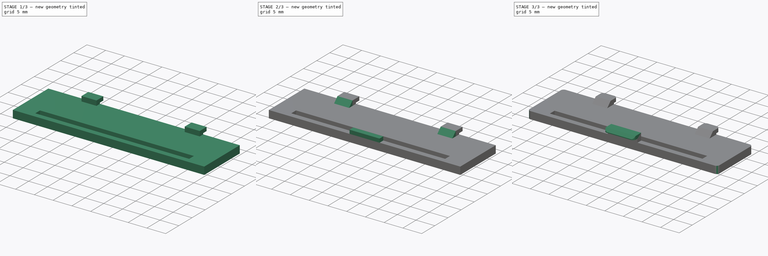
[diagram: build sequence overview — one tinted view per stage of 3, left to right]
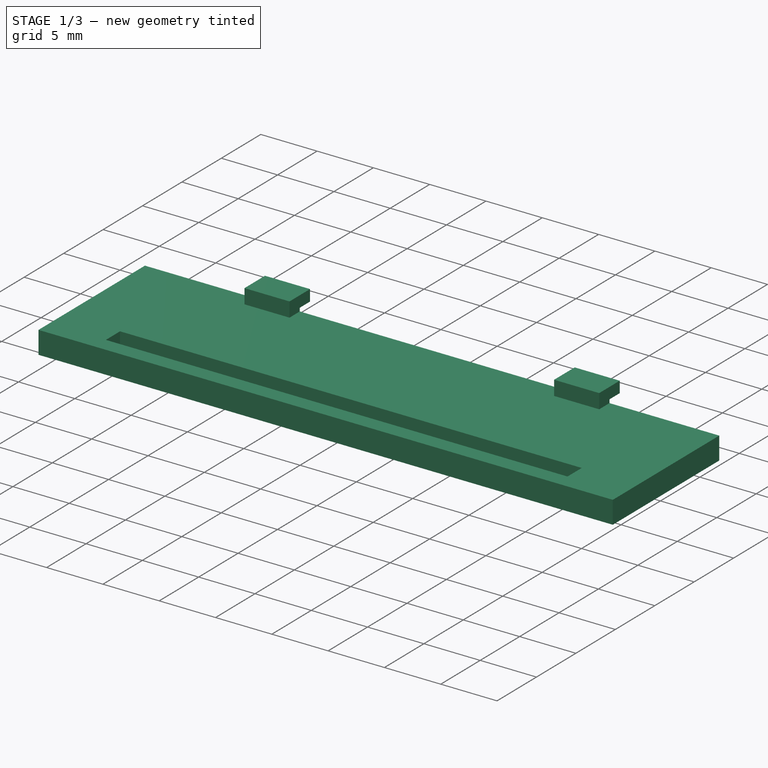
[diagram: stage 1 of 3 — iso view after this stage's code; geometry added in this stage tinted green]
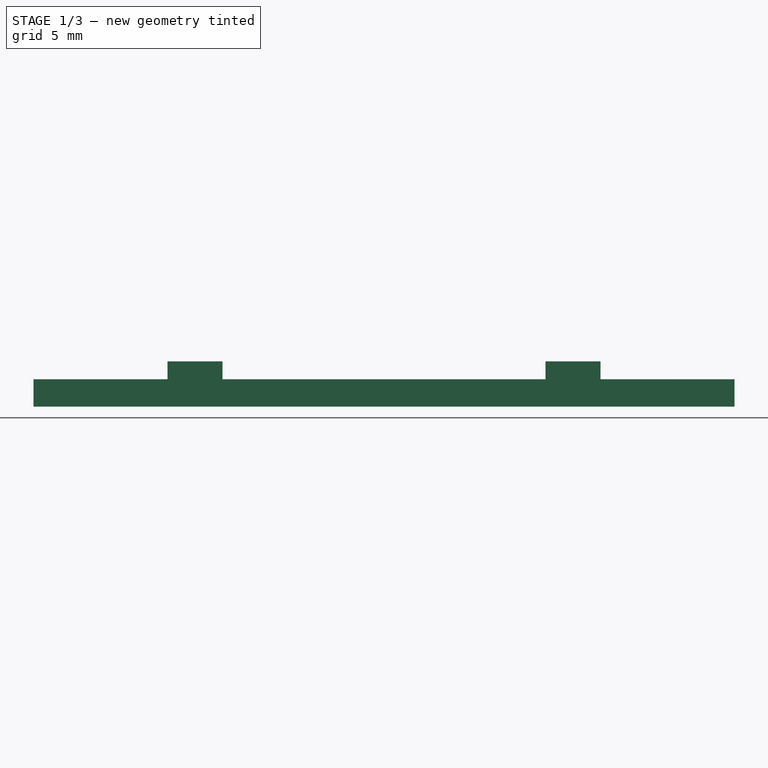
[diagram: stage 1 of 3 — front view after this stage's code; geometry added in this stage tinted green]
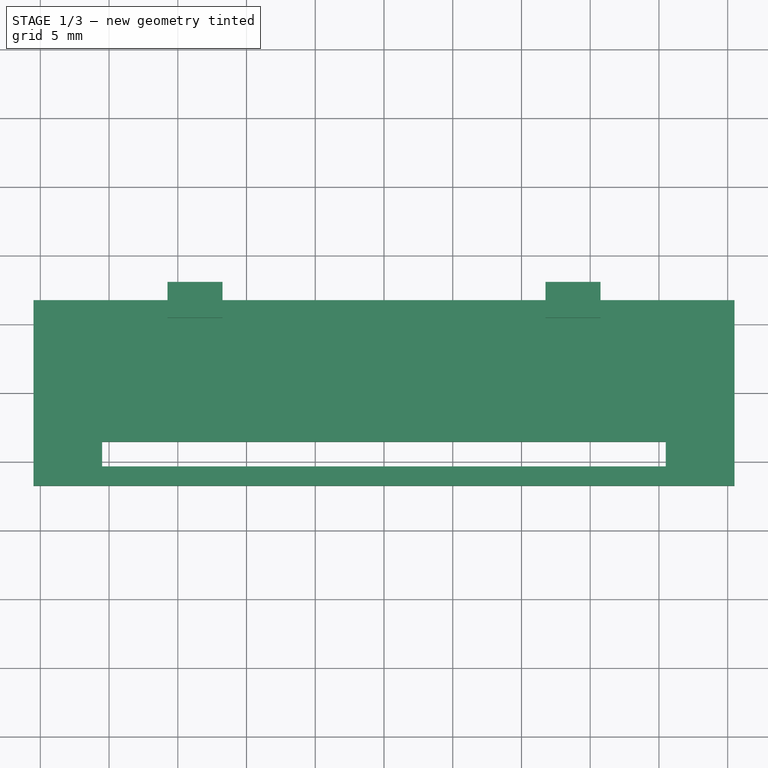
[diagram: stage 1 of 3 — top view after this stage's code; geometry added in this stage tinted green]
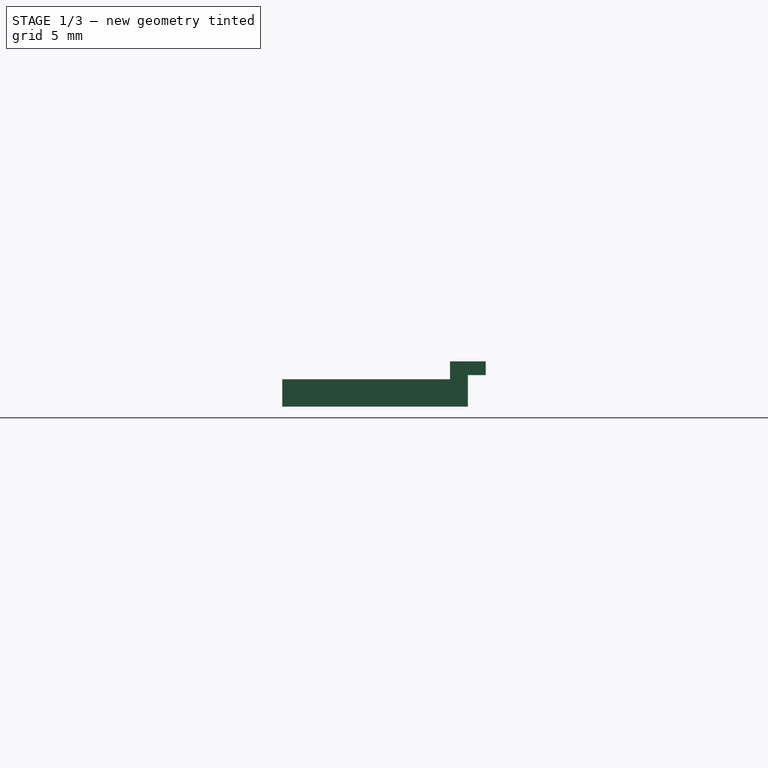
[diagram: stage 1 of 3 — right view after this stage's code; geometry added in this stage tinted green]
FCSTD DOCUMENT  (FreeCAD 0.18.4R)
Label: BatteryCover
License: All rights reserved
LicenseURL: http://en.wikipedia.org/wiki/All_rights_reserved
objects: Sketcher::SketchObject×6, PartDesign::Pad×5, PartDesign::Chamfer×2, PartDesign::Fillet×1, PartDesign::Body×1, App::Part×1
note: 20 computed .brp shape members not serialized (recipe doc carries the construction recipe); baked Part::Feature solids carry a one-line shape summary decoded from their .brp

FEATURE [Sketcher::SketchObject] Sketch  label="Template"
  MapMode = 5
  Support = -> [XY_Plane001]
  expr: Constraints[53] = Constraints.HatchSize / 2 + 0.4mm
  sketch-geometry (21):
    g0: LineSegment StartX=-25.5 StartY=6.75 StartZ=0 EndX=25.5 EndY=6.75 EndZ=0
    g1: LineSegment StartX=25.5 StartY=6.75 StartZ=0 EndX=25.5 EndY=-6.75 EndZ=0
    g2: LineSegment StartX=25.5 StartY=-6.75 StartZ=0 EndX=-25.5 EndY=-6.75 EndZ=0
    g3: LineSegment StartX=-25.5 StartY=-6.75 StartZ=0 EndX=-25.5 EndY=6.75 EndZ=0
    g4: LineSegment [constr] StartX=1e-16 StartY=6.75 StartZ=0 EndX=1e-16 EndY=-6.75 EndZ=0
    g5: LineSegment StartX=-15.75 StartY=8.05 StartZ=0 EndX=-11.75 EndY=8.05 EndZ=0
    g6: LineSegment StartX=-11.75 StartY=8.05 StartZ=0 EndX=-11.75 EndY=5.45 EndZ=0
    g7: LineSegment StartX=-11.75 StartY=5.45 StartZ=0 EndX=-15.75 EndY=5.45 EndZ=0
    g8: LineSegment StartX=-15.75 StartY=5.45 StartZ=0 EndX=-15.75 EndY=8.05 EndZ=0
    g9: LineSegment StartX=11.75 StartY=8.05 StartZ=0 EndX=15.75 EndY=8.05 EndZ=0
    g10: LineSegment StartX=15.75 StartY=8.05 StartZ=0 EndX=15.75 EndY=5.45 EndZ=0
    g11: LineSegment StartX=15.75 StartY=5.45 StartZ=0 EndX=11.75 EndY=5.45 EndZ=0
    g12: LineSegment StartX=11.75 StartY=5.45 StartZ=0 EndX=11.75 EndY=8.05 EndZ=0
    g13: LineSegment StartX=-4 StartY=-5.35 StartZ=0 EndX=4 EndY=-5.35 EndZ=0
    g14: LineSegment StartX=4 StartY=-5.35 StartZ=0 EndX=4 EndY=-8.15 EndZ=0
    g15: LineSegment StartX=4 StartY=-8.15 StartZ=0 EndX=-4 EndY=-8.15 EndZ=0
    g16: LineSegment StartX=-4 StartY=-8.15 StartZ=0 EndX=-4 EndY=-5.35 EndZ=0
    g17: LineSegment StartX=-20.5 StartY=-3.55 StartZ=0 EndX=20.5 EndY=-3.55 EndZ=0
    g18: LineSegment StartX=20.5 StartY=-3.55 StartZ=0 EndX=20.5 EndY=-5.35 EndZ=0
    g19: LineSegment StartX=20.5 StartY=-5.35 StartZ=0 EndX=-20.5 EndY=-5.35 EndZ=0
    g20: LineSegment StartX=-20.5 StartY=-5.35 StartZ=0 EndX=-20.5 EndY=-3.55 EndZ=0
  constraints (57):
    c: Coincident(g0,g1)
    c: Coincident(g1,g2)
    c: Coincident(g2,g3)
    c: Coincident(g3,g0)
    c: Horizontal(g0)
    c: Horizontal(g2)
    c: Vertical(g1)
    c: Vertical(g3)
    c: DistanceY(g3,g3) = 13.5
    c: DistanceX(g0,g0) = 51
    c: Symmetric(g2,g0,g-1)  '__ANCHOR__'
    c: PointOnObject(g4,g0)
    c: PointOnObject(g4,g2)
    c: Symmetric(g0,g0,g4)
    c: Coincident(g5,g6)
    c: Coincident(g6,g7)
    c: Coincident(g7,g8)
    c: Coincident(g8,g5)
    c: Horizontal(g5)
    c: Horizontal(g7)
    c: Vertical(g6)
    c: Coincident(g9,g10)
    c: Coincident(g10,g11)
    c: Coincident(g11,g12)
    c: Coincident(g12,g9)
    c: Horizontal(g9)
    c: Horizontal(g11)
    c: Vertical(g10)
    c: Vertical(g12)
    c: Equal(g5,g9)
    c: Equal(g6,g12)
    c: Symmetric(g6,g11,g4)
    c: Symmetric(g5,g7,g0)
    c: DistanceY(g8,g8) = 2.6
    c: DistanceX(g5,g9) = 23.5
    c: DistanceX(g5,g5) = 4
    c: Coincident(g13,g14)
    c: Coincident(g14,g15)
    c: Coincident(g15,g16)
    c: Coincident(g16,g13)
    c: Horizontal(g15)
    c: Vertical(g14)
    c: Symmetric(g13,g15,g2)
    c: Symmetric(g13,g13,g4)
    c: DistanceX(g15,g15) = 8
    c: Coincident(g17,g18)
    c: Coincident(g18,g19)
    c: Coincident(g19,g20)
    c: Coincident(g20,g17)
    c: Horizontal(g17)
    c: Vertical(g18)
    c: Vertical(g20)
    c: Symmetric(g19,g18,g4)
    c: DistanceY(g20,g20) = 1.8
    c: DistanceX(g2,g19) = 5
    c: PointOnObject(g13,g19)
    c: DistanceY(g16,g16) = 2.8  'HatchSize'
FEATURE [Sketcher::SketchObject] Sketch001
  ExternalGeometry = -> [Sketch]
  MapMode = 5
  Support = -> [XY_Plane001]
  sketch-geometry (8):
    g0: LineSegment StartX=-25.5 StartY=6.75 StartZ=0 EndX=25.5 EndY=6.75 EndZ=0
    g1: LineSegment StartX=25.5 StartY=6.75 StartZ=0 EndX=25.5 EndY=-6.75 EndZ=0
    g2: LineSegment StartX=25.5 StartY=-6.75 StartZ=0 EndX=-25.5 EndY=-6.75 EndZ=0
    g3: LineSegment StartX=-25.5 StartY=-6.75 StartZ=0 EndX=-25.5 EndY=6.75 EndZ=0
    g4: LineSegment StartX=-20.5 StartY=-3.55 StartZ=0 EndX=-20.5 EndY=-5.35 EndZ=0
    g5: LineSegment StartX=-20.5 StartY=-5.35 StartZ=0 EndX=20.5 EndY=-5.35 EndZ=0
    g6: LineSegment StartX=20.5 StartY=-5.35 StartZ=0 EndX=20.5 EndY=-3.55 EndZ=0
    g7: LineSegment StartX=20.5 StartY=-3.55 StartZ=0 EndX=-20.5 EndY=-3.55 EndZ=0
  constraints (16):
    c: Coincident(g-3,g0)
    c: Coincident(g0,g-4)
    c: Coincident(g0,g1)
    c: Coincident(g1,g-4)
    c: Coincident(g1,g2)
    c: Coincident(g2,g-3)
    c: Coincident(g2,g3)
    c: Coincident(g3,g0)
    c: Coincident(g-6,g4)
    c: Coincident(g4,g-6)
    c: Coincident(g4,g5)
    c: Coincident(g5,g-5)
    c: Coincident(g5,g6)
    c: Coincident(g6,g-5)
    c: Coincident(g6,g7)
    c: Coincident(g7,g4)
FEATURE [PartDesign::Pad] Pad
  Length = 2
  Length2 = 100
  Profile = -> Sketch001
  Type = 0
FEATURE [Sketcher::SketchObject] Sketch002
  AttachmentOffset = pos=(0,0,2) rot=(0,0,1;0rad)
  ExternalGeometry = -> [Sketch]
  MapMode = 5
  Placement = pos=(0,0,2) rot=(0,0,1;0rad)
  Support = -> [XY_Plane001]
  expr: AttachmentOffset.Base.z = Sketch001.AttachmentOffset.Base.z + Pad.Length
  sketch-geometry (8):
    g0: LineSegment StartX=-15.75 StartY=5.45 StartZ=0 EndX=-11.75 EndY=5.45 EndZ=0
    g1: LineSegment StartX=-11.75 StartY=5.45 StartZ=0 EndX=-11.75 EndY=6.75 EndZ=0
    g2: LineSegment StartX=-11.75 StartY=6.75 StartZ=0 EndX=-15.75 EndY=6.75 EndZ=0
    g3: LineSegment StartX=-15.75 StartY=6.75 StartZ=0 EndX=-15.75 EndY=5.45 EndZ=0
    g4: LineSegment StartX=15.75 StartY=5.45 StartZ=0 EndX=11.75 EndY=5.45 EndZ=0
    g5: LineSegment StartX=11.75 StartY=5.45 StartZ=0 EndX=11.75 EndY=6.75 EndZ=0
    g6: LineSegment StartX=11.75 StartY=6.75 StartZ=0 EndX=15.75 EndY=6.75 EndZ=0
    g7: LineSegment StartX=15.75 StartY=6.75 StartZ=0 EndX=15.75 EndY=5.45 EndZ=0
  constraints (20):
    c: Coincident(g0,g1)
    c: Coincident(g1,g2)
    c: Coincident(g2,g3)
    c: Coincident(g3,g0)
    c: Horizontal(g2)
    c: Vertical(g1)
    c: Vertical(g3)
    c: Coincident(g0,g-4)
    c: PointOnObject(g1,g-3)
    c: Coincident(g4,g5)
    c: Coincident(g5,g6)
    c: Coincident(g6,g7)
    c: Coincident(g7,g4)
    c: Horizontal(g6)
    c: Vertical(g5)
    c: Vertical(g7)
    c: Coincident(g4,g-5)
    c: PointOnObject(g5,g-3)
    c: Coincident(g-5,g4)
    c: Coincident(g0,g-4)
FEATURE [PartDesign::Pad] Pad001
  BaseFeature = -> Pad
  Length = 0.3
  Length2 = 100
  Profile = -> Sketch002
  Type = 0
FEATURE [Sketcher::SketchObject] Sketch003
  AttachmentOffset = pos=(0,0,2.3) rot=(0,0,1;0rad)
  ExternalGeometry = -> [Sketch]
  MapMode = 5
  Placement = pos=(0,0,2.3) rot=(0,0,1;0rad)
  Support = -> [XY_Plane001]
  expr: AttachmentOffset.Base.z = Sketch002.AttachmentOffset.Base.z + Pad001.Length
  sketch-geometry (8):
    g0: LineSegment StartX=-15.75 StartY=8.05 StartZ=0 EndX=-11.75 EndY=8.05 EndZ=0
    g1: LineSegment StartX=-11.75 StartY=8.05 StartZ=0 EndX=-11.75 EndY=5.45 EndZ=0
    g2: LineSegment StartX=-11.75 StartY=5.45 StartZ=0 EndX=-15.75 EndY=5.45 EndZ=0
    g3: LineSegment StartX=-15.75 StartY=5.45 StartZ=0 EndX=-15.75 EndY=8.05 EndZ=0
    g4: LineSegment StartX=11.75 StartY=8.05 StartZ=0 EndX=15.75 EndY=8.05 EndZ=0
    g5: LineSegment StartX=15.75 StartY=8.05 StartZ=0 EndX=15.75 EndY=5.45 EndZ=0
    g6: LineSegment StartX=15.75 StartY=5.45 StartZ=0 EndX=11.75 EndY=5.45 EndZ=0
    g7: LineSegment StartX=11.75 StartY=5.45 StartZ=0 EndX=11.75 EndY=8.05 EndZ=0
  constraints (16):
    c: Coincident(g0,g1)
    c: Coincident(g1,g2)
    c: Coincident(g2,g3)
    c: Coincident(g3,g0)
    c: Coincident(g0,g-3)
    c: Coincident(g1,g-4)
    c: Coincident(g4,g5)
    c: Coincident(g5,g6)
    c: Coincident(g6,g7)
    c: Coincident(g7,g4)
    c: Coincident(g4,g-6)
    c: Coincident(g5,g-5)
    c: Coincident(g2,g-4)
    c: Coincident(g0,g-3)
    c: Coincident(g6,g-5)
    c: Coincident(g4,g-6)
FEATURE [PartDesign::Pad] Pad002
  BaseFeature = -> Pad001
  Length = 1
  Length2 = 100
  Profile = -> Sketch003
  Refine = true
  Type = 0
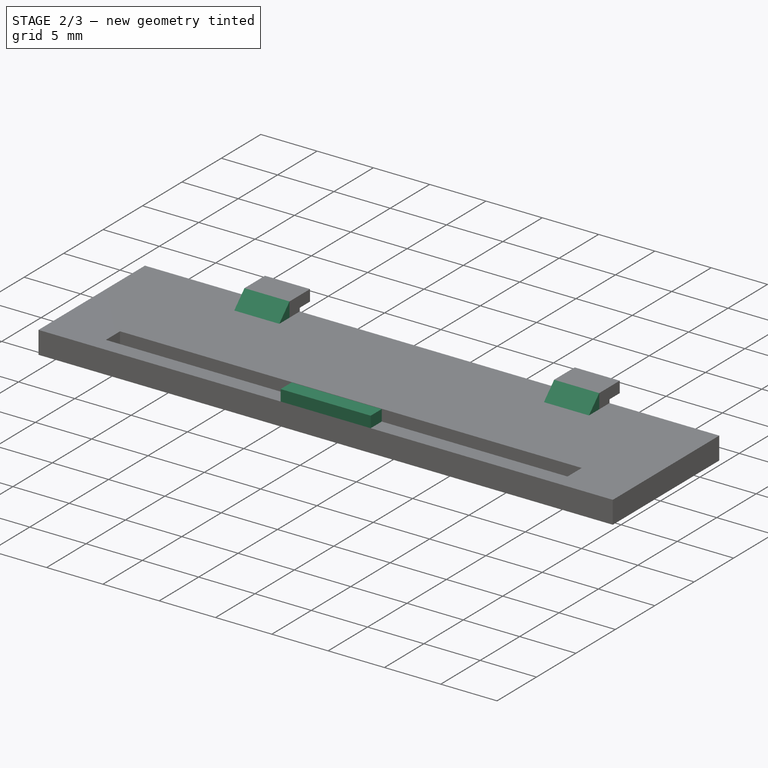
[diagram: stage 2 of 3 — iso view after this stage's code; geometry added in this stage tinted green]
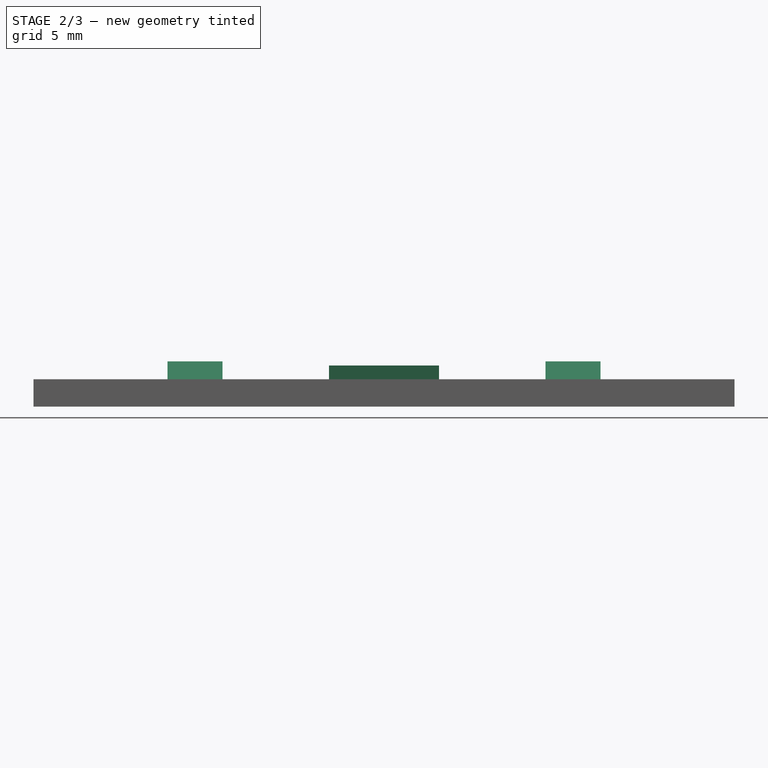
[diagram: stage 2 of 3 — front view after this stage's code; geometry added in this stage tinted green]
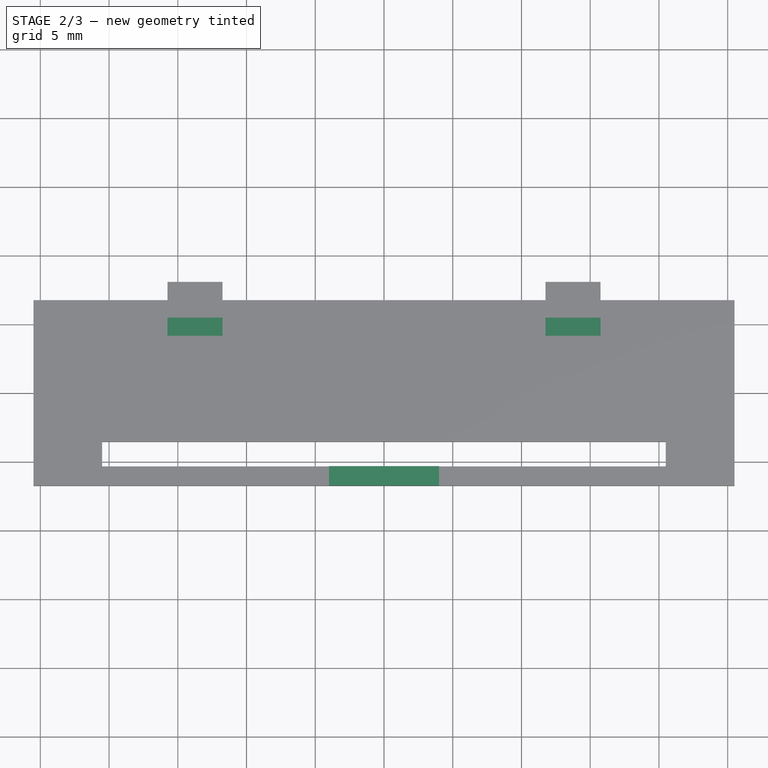
[diagram: stage 2 of 3 — top view after this stage's code; geometry added in this stage tinted green]
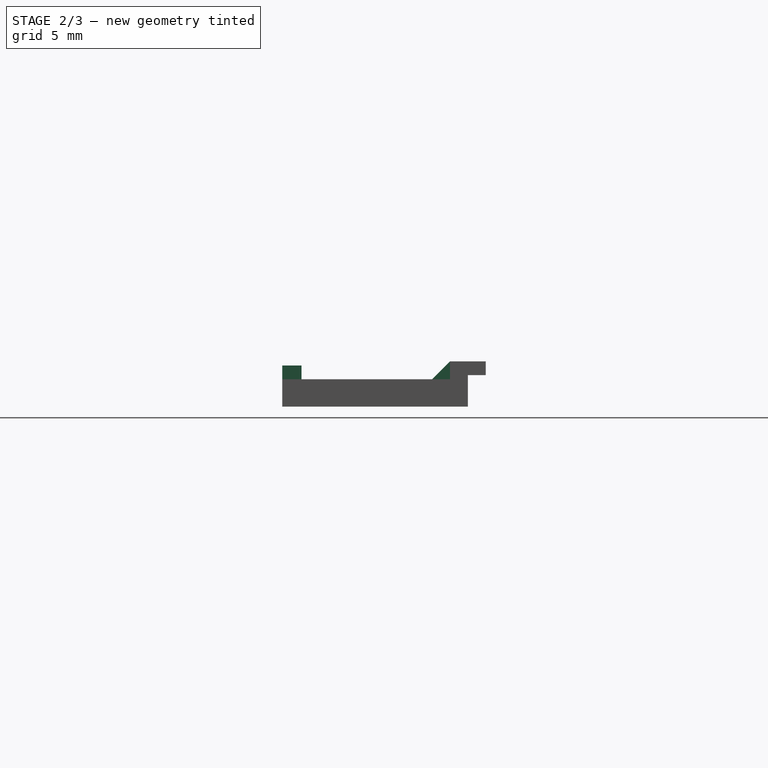
[diagram: stage 2 of 3 — right view after this stage's code; geometry added in this stage tinted green]
FEATURE [PartDesign::Chamfer] Chamfer001
  Base = -> Pad002 [Edge22,Edge18]
  BaseFeature = -> Pad002
  Size = 1.299
  expr: Size = Pad002.Length + Pad001.Length - 0.001mm
FEATURE [Sketcher::SketchObject] Sketch004
  AttachmentOffset = pos=(0,0,2) rot=(0,0,1;0rad)
  ExternalGeometry = -> [Sketch]
  MapMode = 5
  Placement = pos=(0,0,2) rot=(0,0,1;0rad)
  Support = -> [XY_Plane001]
  expr: AttachmentOffset.Base.z = Sketch001.AttachmentOffset.Base.z + Pad.Length
  sketch-geometry (4):
    g0: LineSegment StartX=-4 StartY=-5.35 StartZ=0 EndX=4 EndY=-5.35 EndZ=0
    g1: LineSegment StartX=4 StartY=-5.35 StartZ=0 EndX=4 EndY=-6.75 EndZ=0
    g2: LineSegment StartX=4 StartY=-6.75 StartZ=0 EndX=-4 EndY=-6.75 EndZ=0
    g3: LineSegment StartX=-4 StartY=-6.75 StartZ=0 EndX=-4 EndY=-5.35 EndZ=0
  constraints (10):
    c: Coincident(g0,g1)
    c: Coincident(g1,g2)
    c: Coincident(g2,g3)
    c: Coincident(g3,g0)
    c: Horizontal(g2)
    c: Vertical(g1)
    c: Vertical(g3)
    c: Coincident(g0,g-3)
    c: PointOnObject(g1,g-4)
    c: Coincident(g0,g-3)
FEATURE [PartDesign::Pad] Pad003
  BaseFeature = -> Chamfer001
  Length = 1
  Length2 = 100
  Profile = -> Sketch004
  Type = 0
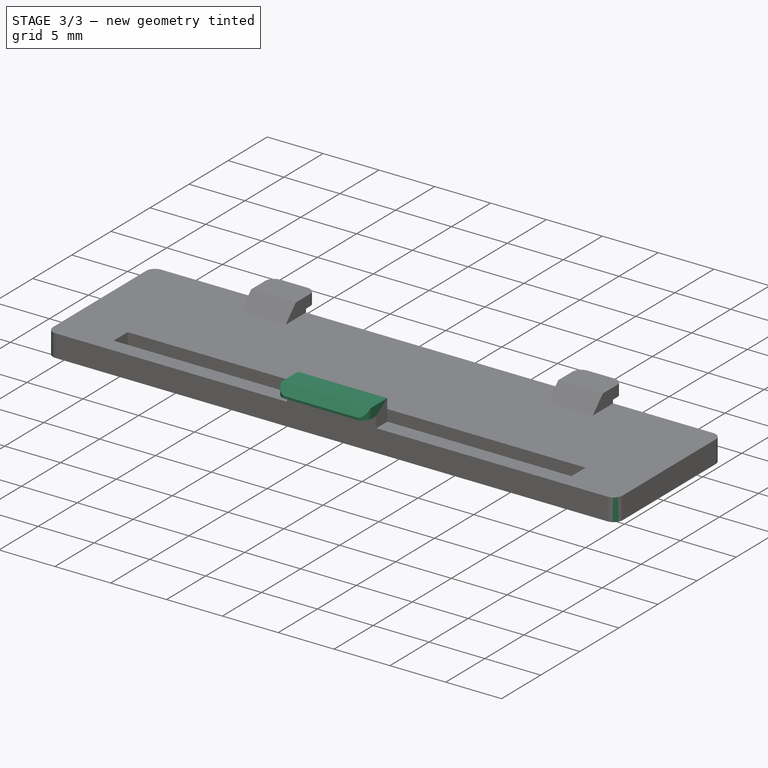
[diagram: stage 3 of 3 — iso view after this stage's code; geometry added in this stage tinted green]
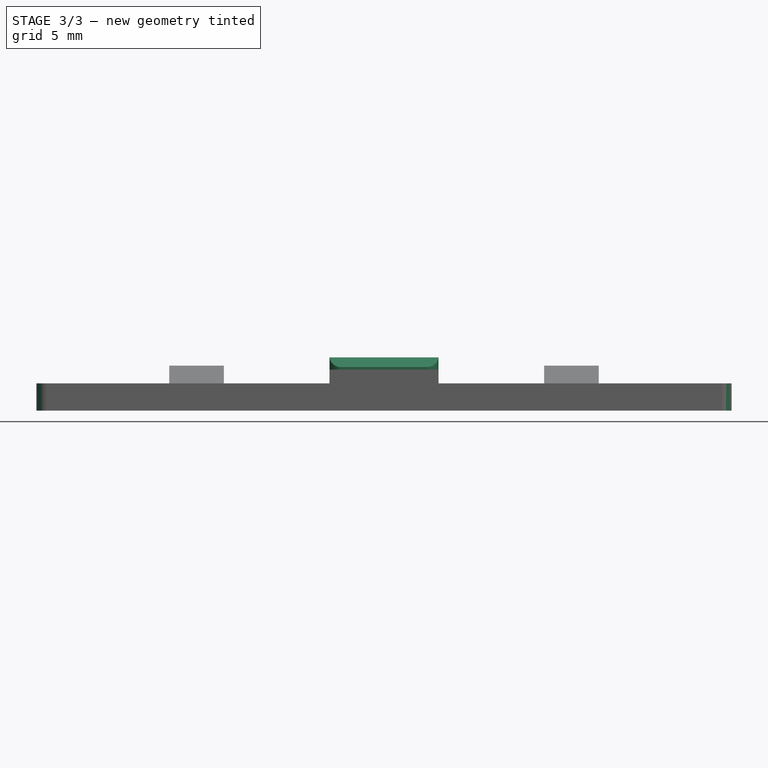
[diagram: stage 3 of 3 — front view after this stage's code; geometry added in this stage tinted green]
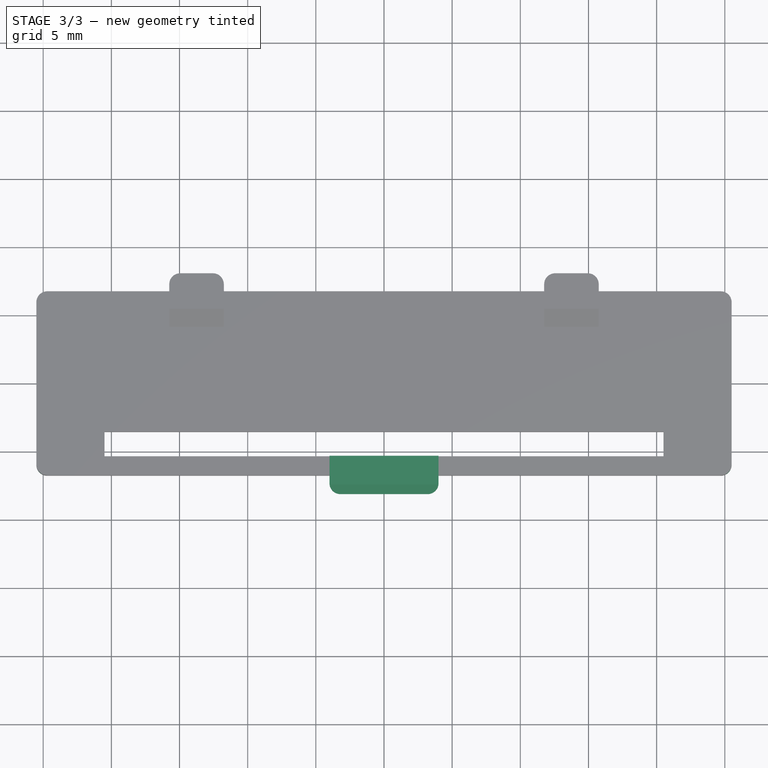
[diagram: stage 3 of 3 — top view after this stage's code; geometry added in this stage tinted green]
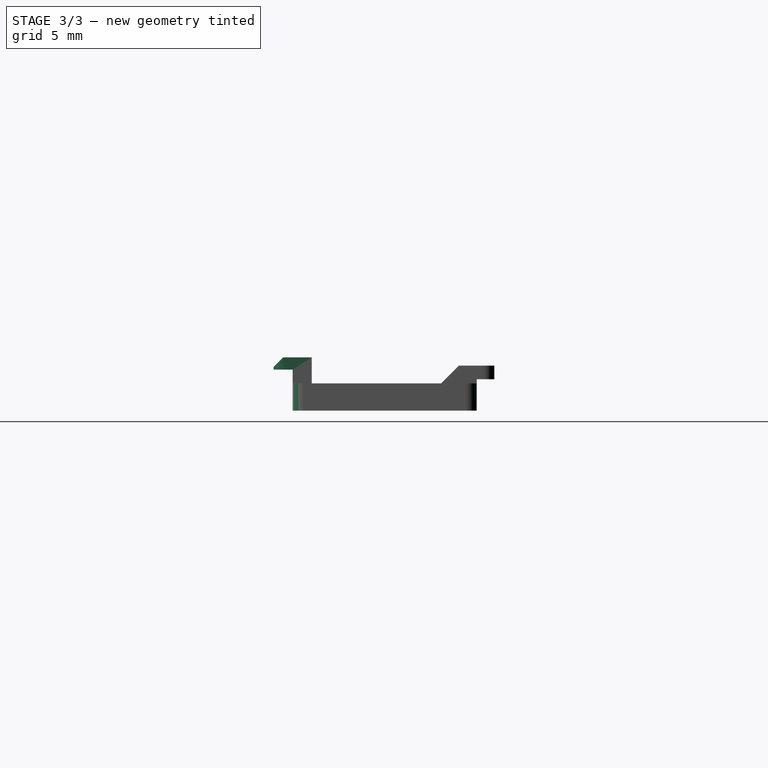
[diagram: stage 3 of 3 — right view after this stage's code; geometry added in this stage tinted green]
FEATURE [Sketcher::SketchObject] Sketch005
  AttachmentOffset = pos=(0,0,3) rot=(0,0,1;0rad)
  ExternalGeometry = -> [Sketch]
  MapMode = 5
  Placement = pos=(0,0,3) rot=(0,0,1;0rad)
  Support = -> [XY_Plane001]
  expr: AttachmentOffset.Base.z = Sketch004.AttachmentOffset.Base.z + Pad003.Length
  sketch-geometry (4):
    g0: LineSegment StartX=-4 StartY=-5.35 StartZ=0 EndX=4 EndY=-5.35 EndZ=0
    g1: LineSegment StartX=4 StartY=-5.35 StartZ=0 EndX=4 EndY=-8.15 EndZ=0
    g2: LineSegment StartX=4 StartY=-8.15 StartZ=0 EndX=-4 EndY=-8.15 EndZ=0
    g3: LineSegment StartX=-4 StartY=-8.15 StartZ=0 EndX=-4 EndY=-5.35 EndZ=0
  constraints (10):
    c: Coincident(g0,g1)
    c: Coincident(g1,g2)
    c: Coincident(g2,g3)
    c: Coincident(g3,g0)
    c: Horizontal(g0)
    c: Horizontal(g2)
    c: Vertical(g1)
    c: Vertical(g3)
    c: Coincident(g0,g-4)
    c: Coincident(g1,g-3)
FEATURE [PartDesign::Pad] Pad004
  BaseFeature = -> Pad003
  Length = 0.9
  Length2 = 100
  Profile = -> Sketch005
  Refine = true
  Type = 0
FEATURE [PartDesign::Chamfer] Chamfer
  Base = -> Pad004 [Edge79]
  BaseFeature = -> Pad004
  Size = 0.7
  expr: Size = Pad004.Length - 0.2mm
FEATURE [PartDesign::Fillet] Fillet
  Base = -> Chamfer [Edge4,Edge1,Edge42,Edge52,Edge59,Edge41,Edge80,Edge74,Edge69,Edge63]
  BaseFeature = -> Chamfer
  Radius = 0.8
FEATURE [PartDesign::Body] Body
  Group = -> [Sketch,Sketch001,Pad,Sketch002,Pad001,Sketch003,Pad002,Chamfer001,Sketch004,Pad003,Sketch005,Pad004,Chamfer,Fillet]
  Origin = -> Origin001
  Tip = -> Fillet
FEATURE [App::Part] Part
  Group = -> [Body]
  Origin = -> Origin
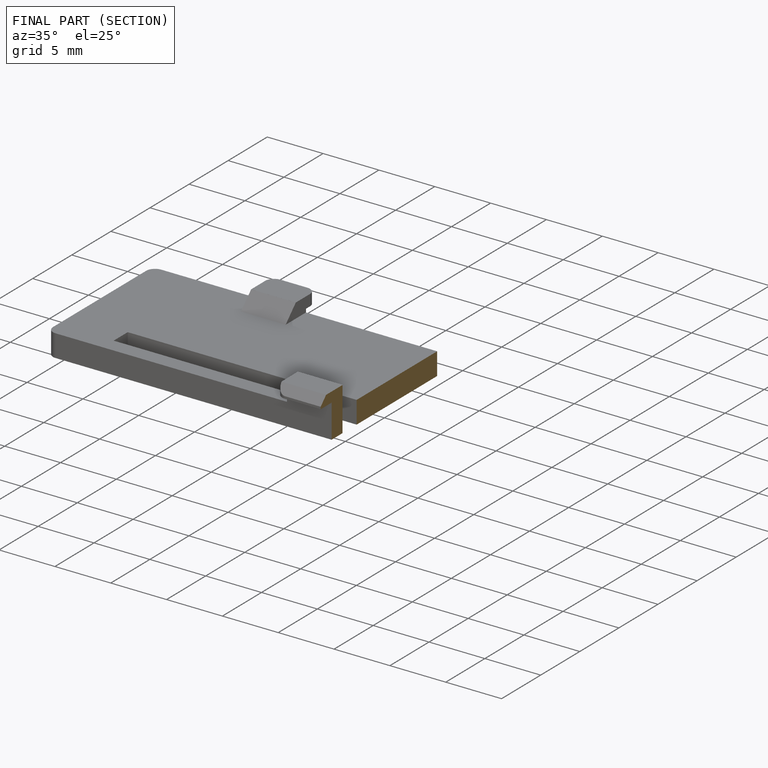
[diagram: finished part — half-section view (interior)]
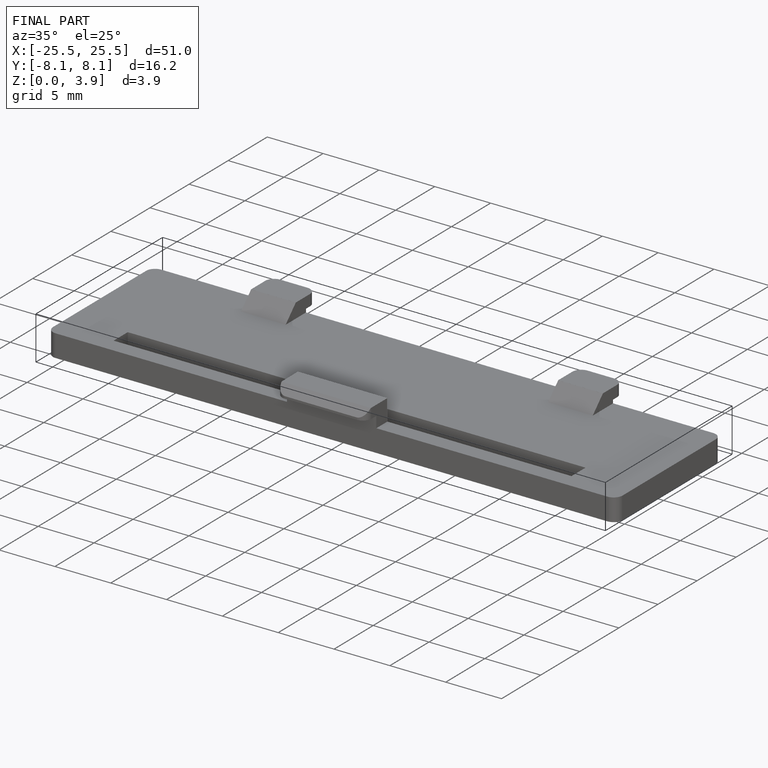
[diagram: finished part — iso view with bounding-box wireframe]
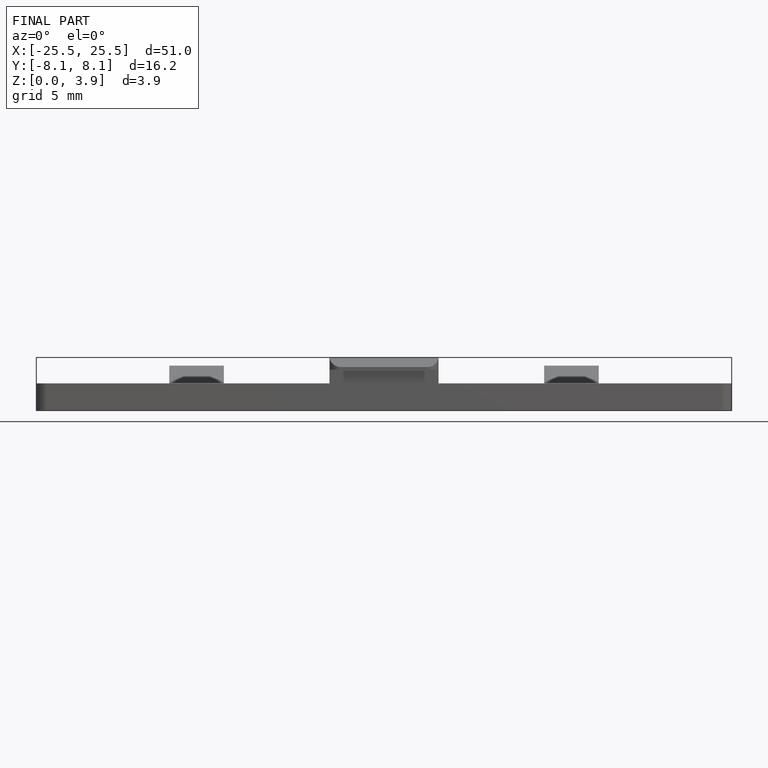
[diagram: finished part — front view with bounding-box wireframe]
